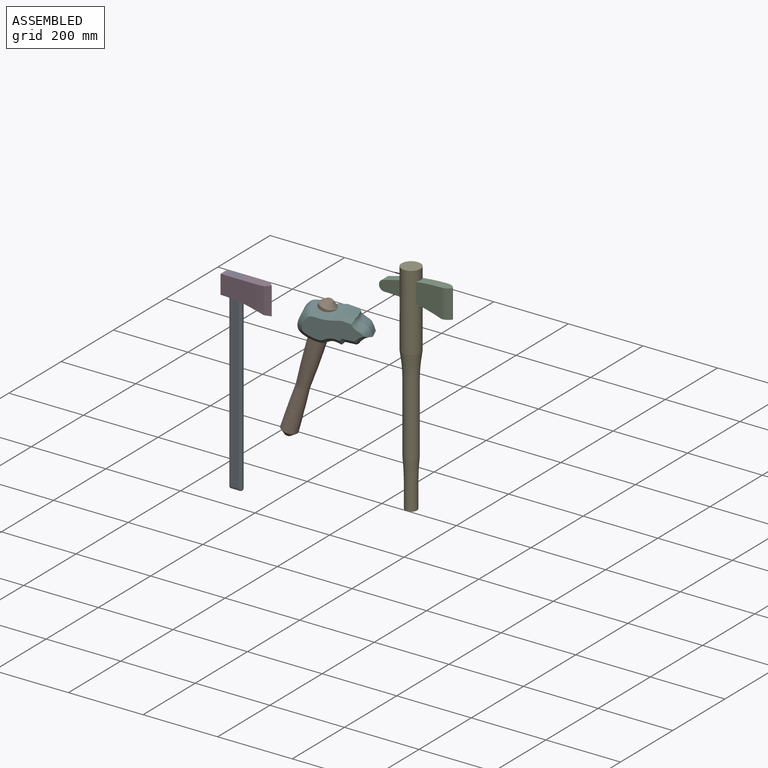
[diagram: assembled view]
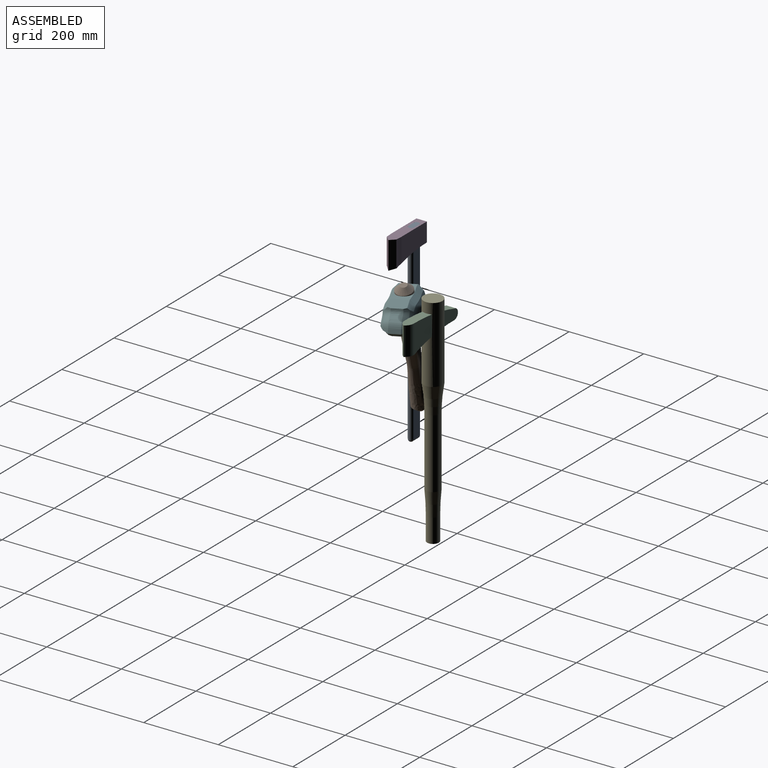
[diagram: assembled view, second angle]
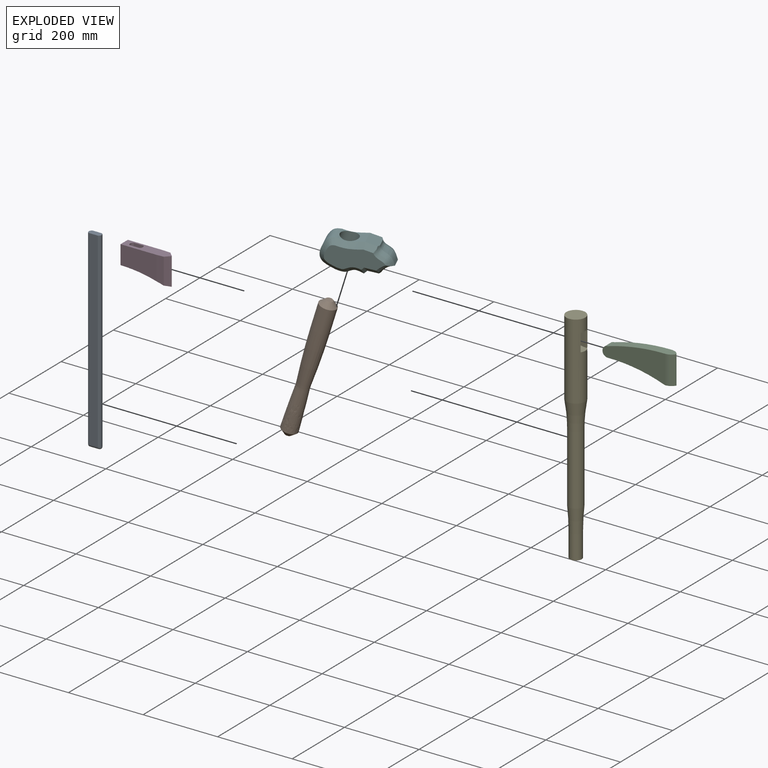
[diagram: exploded view]
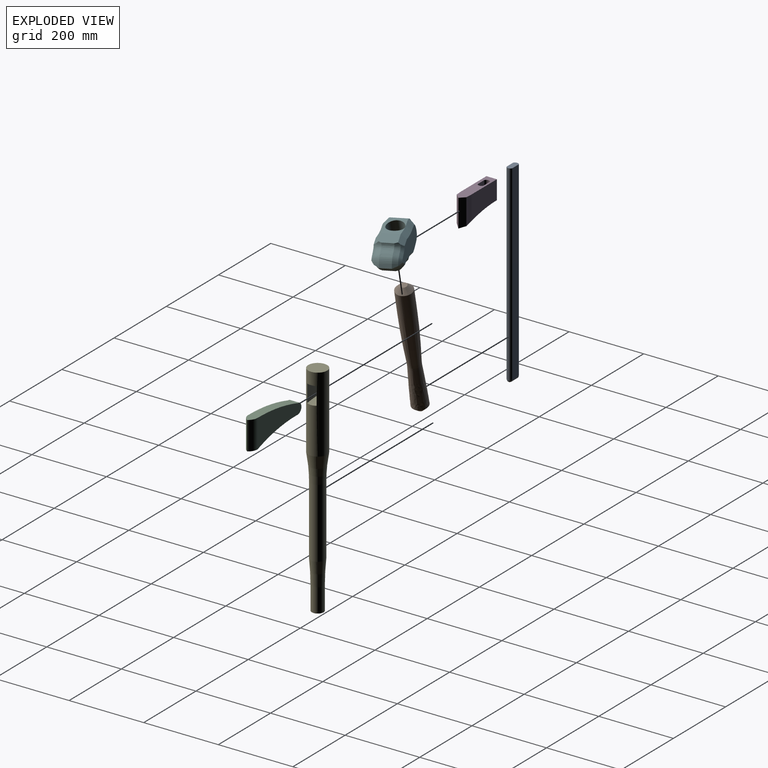
[diagram: exploded view, second angle]
ASSEMBLY  parts=6 mates=3
PART A: 12 faces, bbox 34.5x15.2x519.7 mm
  f0: cylinder r=8.64mm len=514.64mm, axis (0,0,1), area 7053.6mm2, adj f4,f6,f7,f8
  f1: plane 512.1x22.25mm, normal (0,1,0), area 11391.7mm2, adj f4,f5,f6,f9
  f2: cylinder r=8.64mm len=514.64mm, axis (0,0,1), area 7063.6mm2, adj f4,f9,f10,f11
  f3: plane 512.1x22.25mm, normal (0,-1,0), area 11391.7mm2, adj f4,f5,f8,f11
  f4: plane 34.54x15.24mm, normal (0,0,1), area 485mm2, adj f0,f1,f2,f3,f6,f8,f9,f11
  f5: cylinder r=7.62mm len=24.38mm, axis (-1,0,0), area 559.2mm2, adj f1,f3,f7,f10
  f6: cylinder r=5.08mm len=512.1mm, axis (0,0,1), area 2021mm2, adj f0,f1,f4,f7
  f7: bspline ~15.24x9.06mm, area 131.3mm2, adj f0,f5,f6,f8
  f8: cylinder r=5.08mm len=512.1mm, axis (0,0,1), area 2021mm2, adj f0,f3,f4,f7
  f9: cylinder r=5.08mm len=512.1mm, axis (0,0,1), area 2016.6mm2, adj f1,f2,f4,f10
  f10: bspline ~15.24x9.06mm, area 131.3mm2, adj f2,f5,f9,f11
  f11: cylinder r=5.08mm len=512.1mm, axis (0,0,1), area 2016.6mm2, adj f2,f3,f4,f10
PART B: 10 faces, bbox 136.1x351.6x101.6 mm
  f0: cylinder r=22.24mm len=72.18mm, axis (0.22,-0.97,0), area 8918.2mm2, adj f6,f9
  f1: plane 18.07x17.6mm, normal (0.22,-0.97,0), area 256.4mm2, adj f9
  f2: cylinder r=16.51mm len=33.02mm, axis (0.22,-0.97,0), area 11.2mm2, adj f3,f5
  f3: torus R=121.49mm, axis (0.22,-0.97,0), area 834.4mm2, adj f2,f6
  f4: plane 16.62x16.2mm, normal (-0.22,0.97,0), area 217mm2, adj f8
  f5: torus R=114.12mm, axis (-0.22,0.97,0), area 591.3mm2, adj f2,f7
  f6: revolved ~147.59x70.08mm, area 36613mm2, adj f0,f3
  f7: revolved ~116.02x61.75mm, area 13369.4mm2, adj f5,f8
  f8: cone r=8.31mm half-angle=44.3deg, axis (0.22,-0.97,0), area 1719.9mm2, adj f4,f7
  f9: cone r=9.03mm half-angle=45deg, axis (-0.22,0.97,0), area 1835.2mm2, adj f0,f1
PART C: 9 faces, bbox 189.7x25.4x76.2 mm
  f0: cylinder r=430.77mm len=153.27mm, axis (0,-1,0), area 3967.8mm2, adj f1,f3,f4,f8
  f1: plane 25.4x22mm, normal (0,0,-1), area 396.2mm2, adj f0,f5,f6
  f2: plane 25.4x22mm, normal (0,0,1), area 396.2mm2, adj f5,f6,f7
  f3: plane 167.73x76.2mm, normal (0,-1,0), area 8169.4mm2, adj f0,f5,f7,f8
  f4: plane 167.73x76.2mm, normal (0,1,0), area 8169.4mm2, adj f0,f6,f7,f8
  f5: cylinder r=25.4mm len=76.2mm, axis (0,0,-1), area 2026.8mm2, adj f1,f2,f3,f6
  f6: cylinder r=25.4mm len=76.2mm, axis (0,0,1), area 2026.8mm2, adj f1,f2,f4,f5
  f7: cylinder r=528.53mm len=153.76mm, axis (0,-1,0), area 3962.8mm2, adj f2,f3,f4,f8
  f8: cylinder r=13.97mm len=27.94mm, axis (0,-1,0), area 1127.3mm2, adj f0,f3,f4,f7
PART D: 14 faces, bbox 127.4x28x74.5 mm
  f0: cylinder r=354.84mm len=127.34mm, axis (0,1,0), area 2935mm2, adj f2,f3,f4,f5,f6,f7,f8,f9
  f1: plane 127.34x27.94mm, normal (0,0,1), area 2868.6mm2, adj f2,f3,f4,f5,f6,f7,f8,f9
  f2: plane 50.8x27.94mm, normal (-1,0,0), area 1419.4mm2, adj f0,f1,f3,f4
  f3: plane 97.54x64.49mm, normal (0,-1,0), area 5396.8mm2, adj f0,f1,f2,f6
  f4: plane 97.54x64.49mm, normal (0,1,0), area 5396.8mm2, adj f0,f1,f2,f7
  f5: plane 74.47x0.43mm, normal (1,0,0), area 31.9mm2, adj f0,f1,f8,f9
  f6: cylinder r=341.47mm len=70.01mm, axis (0,0,1), area 1180.8mm2, adj f0,f1,f3,f8
  f7: cylinder r=341.47mm len=70.01mm, axis (0,0,-1), area 1180.8mm2, adj f0,f1,f4,f9
  f8: plane 74.51x12.73mm, normal (0.72,-0.69,0), area 1273.9mm2, adj f0,f1,f5,f6
  f9: plane 74.51x12.73mm, normal (0.72,0.69,0), area 1273.9mm2, adj f0,f1,f5,f7
  f10: cylinder r=8.64mm len=54.25mm, axis (0,0,1), area 1008.2mm2, adj f0,f1,f11,f13
  f11: plane 53.64x25.4mm, normal (0,-1,0), area 1329.2mm2, adj f0,f1,f10,f12
  f12: cylinder r=8.64mm len=51.33mm, axis (0,0,1), area 955.5mm2, adj f0,f1,f11,f13
  f13: plane 53.64x25.4mm, normal (0,1,0), area 1329.2mm2, adj f0,f1,f10,f12
PART E: 11 faces, bbox 430.4x430.4x985.3 mm
  f0: cylinder r=25.4mm len=203.58mm, axis (0,0,1), area 30325mm2, adj f1,f3,f7,f8,f9,f10
  f1: plane 50.8x50.8mm, normal (0,0,1), area 2026.8mm2, adj f0
  f2: cylinder r=19.05mm len=186.35mm, axis (0,0,1), area 22304.8mm2, adj f3,f6
  f3: torus R=424.53mm, axis (0,0,1), area 9557.3mm2, adj f0,f2
  f4: cylinder r=15.88mm len=63.61mm, axis (0,0,1), area 6344.5mm2, adj f5,f6
  f5: plane 31.75x31.75mm, normal (0,0,-1), area 791.7mm2, adj f4
  f6: torus R=646.71mm, axis (0,0,1), area 6736.9mm2, adj f2,f4
  f7: plane 47.21x43.99mm, normal (0,-1,0), area 1787.3mm2, adj f0,f9,f10
  f8: plane 47.21x43.99mm, normal (0,1,0), area 1787.3mm2, adj f0,f9,f10
  f9: cylinder r=528.53mm len=50.8mm, axis (0,-1,0), area 1262.6mm2, adj f0,f7,f8
  f10: cylinder r=430.77mm len=50.8mm, axis (0,-1,0), area 1239.3mm2, adj f0,f7,f8
PART F: 42 faces, bbox 171.2x94.4x71.9 mm
  f0: extruded ~4.79x1.2mm, area 1.4mm2, adj f10,f23,f35
  f1: extruded ~58.71x44.48mm, area 2735.2mm2, adj f8,f23,f32,f35
  f2: extruded ~44.48x41.14mm, area 1034.9mm2, adj f14,f19,f33,f35
  f3: extruded ~29.24x23.87mm, area 1000.4mm2, adj f4,f14,f37,f39
  f4: plane 29.26x0.55mm, normal (0.69,-0.73,0), area 21.6mm2, adj f3,f5,f37,f38,f39,f40
  f5: extruded ~29.24x21.96mm, area 727.4mm2, adj f4,f6,f38,f40
  f6: cylinder r=41.38mm len=30.3mm, axis (0,0,-1), area 1122.1mm2, adj f5,f7,f36,f41
  f7: plane 44.53x29.43mm, normal (-0.1,1,0), area 1287mm2, adj f6,f8,f24,f28,f36,f41
  f8: plane 44.48x8.13mm, normal (0.74,0.67,0), area 489.6mm2, adj f1,f7,f25,f30
  f9: extruded ~4.79x1.2mm, area 1.4mm2, adj f10,f32,f35
  f10: extruded ~44.49x34.97mm, area 1287.7mm2, adj f0,f9,f11,f21,f34,f35
  f11: cylinder r=39.37mm len=44.48mm, axis (0,0,-1), area 254.6mm2, adj f10,f12,f21,f34
  f12: extruded ~52.21x44.48mm, area 3263.8mm2, adj f11,f13,f21,f34
  f13: extruded ~44.48x22.36mm, area 229.8mm2, adj f12,f19,f33,f35
  f14: plane 44.52x31.6mm, normal (0.22,-0.97,0), area 1413.4mm2, adj f2,f3,f17,f31,f37,f39
  f15: plane 141.61x58.53mm, normal (0,0,1), area 5643.2mm2, adj f17,f18,f19,f20,f21,f22,f23,f24
  f16: plane 141.61x58.52mm, normal (0,0,-1), area 5641.5mm2, adj f26,f27,f28,f29,f30,f31,f32,f33
  f17: plane 29.26x18.68mm, normal (0.16,-0.69,0.71), area 477.7mm2, adj f14,f15,f18,f19,f37
  f18: bspline ~38.77x32.75mm, area 354.2mm2, adj f15,f17,f20,f37
  f19: bspline ~75.05x17.41mm, area 1158.6mm2, adj f2,f13,f15,f17,f21
  f20: bspline ~28.39x21.4mm, area 115.5mm2, adj f15,f18,f22,f38
  f21: bspline ~82x50.62mm, area 1833.8mm2, adj f10,f11,f12,f15,f19,f23
  f22: cone r=41.38mm half-angle=45deg, axis (0,0,1), area 309.3mm2, adj f15,f20,f24,f36
  f23: bspline ~76.08x21.43mm, area 1122.4mm2, adj f0,f1,f15,f21,f25
  f24: plane 31.84x16.02mm, normal (-0.07,0.7,0.71), area 503.2mm2, adj f7,f15,f22,f25,f36
  f25: plane 23.22x14.53mm, normal (0.52,0.48,0.71), area 174.6mm2, adj f8,f15,f23,f24
  f26: cone r=54.08mm half-angle=45deg, axis (0,0,-1), area 309.3mm2, adj f16,f27,f28,f41
  f27: bspline ~16.76x13.09mm, area 115.5mm2, adj f16,f26,f29,f40
  f28: plane 31.84x16.02mm, normal (-0.07,0.7,-0.71), area 503.2mm2, adj f7,f16,f26,f30,f41
  f29: bspline ~38.77x32.75mm, area 354.2mm2, adj f16,f27,f31,f39
  f30: plane 23.23x14.54mm, normal (0.52,0.48,-0.71), area 174.8mm2, adj f8,f16,f28,f32
  f31: plane 29.26x18.68mm, normal (0.16,-0.69,-0.71), area 473.5mm2, adj f14,f16,f29,f33,f39
  f32: bspline ~76.69x21.36mm, area 1123.5mm2, adj f1,f9,f16,f30,f34
  f33: bspline ~75.05x17.41mm, area 1158.7mm2, adj f2,f13,f16,f31,f34
  f34: bspline ~82x50.62mm, area 1833.1mm2, adj f10,f11,f12,f16,f32,f33
  f35: cylinder r=22.24mm len=92.36mm, axis (0.22,-0.97,0), area 10895.3mm2, adj f0,f1,f2,f9,f10,f13
  f36: cone r=41.38mm half-angle=22.5deg, axis (0,0,1), area 531.1mm2, adj f6,f7,f22,f24,f38
  f37: bspline ~29.81x27.98mm, area 509.9mm2, adj f3,f4,f14,f17,f18,f38
  f38: bspline ~25.34x15.93mm, area 293.5mm2, adj f4,f5,f20,f36,f37
  f39: bspline ~29.81x27.98mm, area 509.9mm2, adj f3,f4,f14,f29,f31,f40
  f40: bspline ~25.34x15.93mm, area 293.5mm2, adj f4,f5,f27,f39,f41
  f41: cone r=41.38mm half-angle=22.5deg, axis (0,0,-1), area 531.1mm2, adj f6,f7,f26,f28,f40
PLACE A t=(-176.37,-262.32,97.9)mm
PLACE B rot(axis=(-0.96,-0.16,0.22),90.1deg) t=(8.3,-182.85,51.62)mm
PLACE C t=(41.26,-6.39,123.64)mm
PLACE D t=(-176.37,-262.32,97.9)mm
PLACE E t=(61.03,-6.39,121.28)mm
PLACE F rot(axis=(-0.96,-0.16,0.22),90.1deg) t=(6.35,-183.29,44.71)mm
MATE fastened C.f4 <-> E.f7  axis (0,1,0) through (104.99,6.31,110.49)mm
MATE fastened A.f0 <-> D.f10  axis (0,0,1) through (-198.38,-260.83,165.28)mm
MATE fastened F.f35 <-> B.f2  axis (0.27,0.06,0.96) through (-30.02,-162.87,102.81)mm
